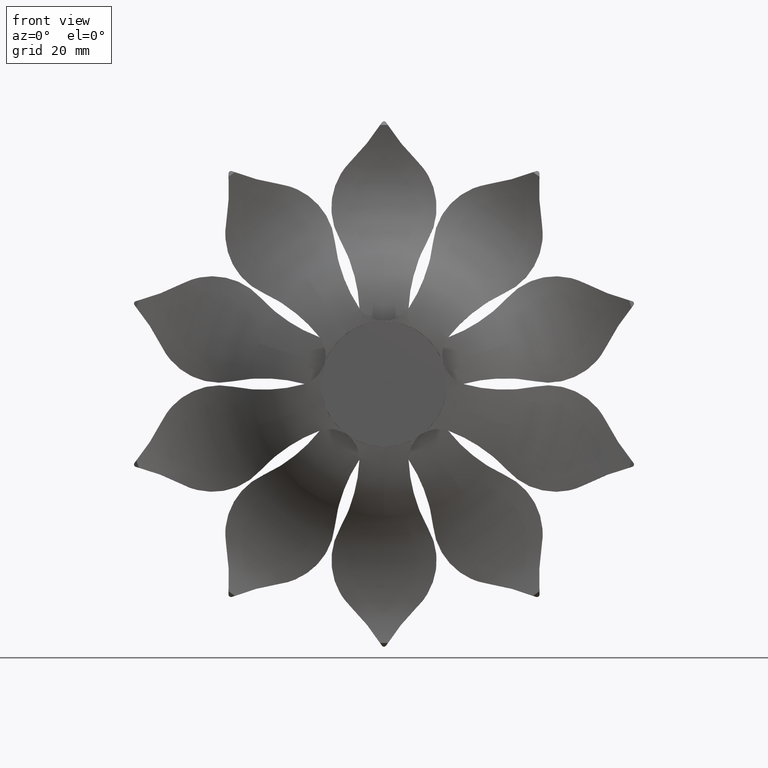
[diagram: clean part render]
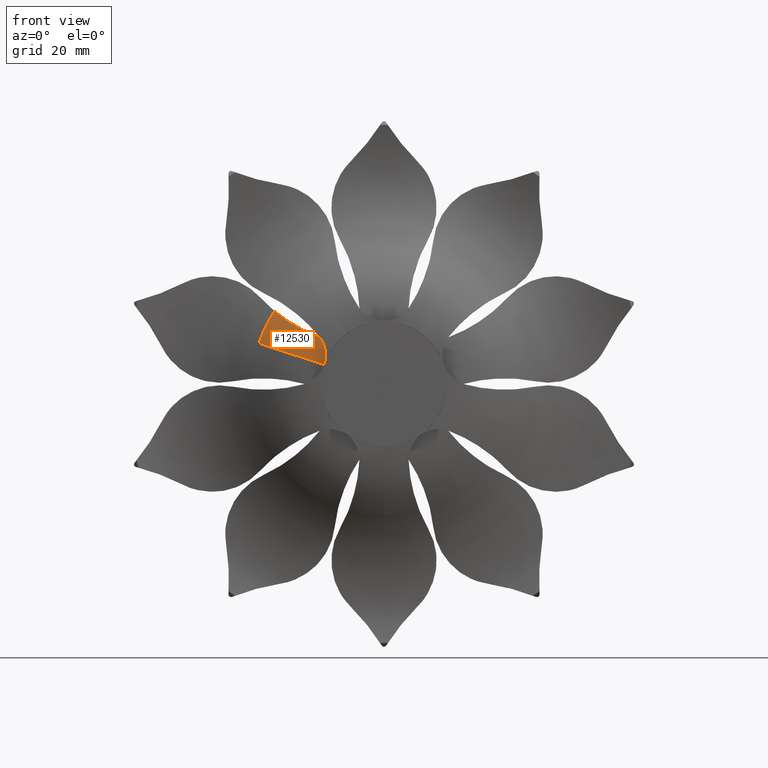
[diagram: same view with one face highlighted and labeled with its STEP entity id]
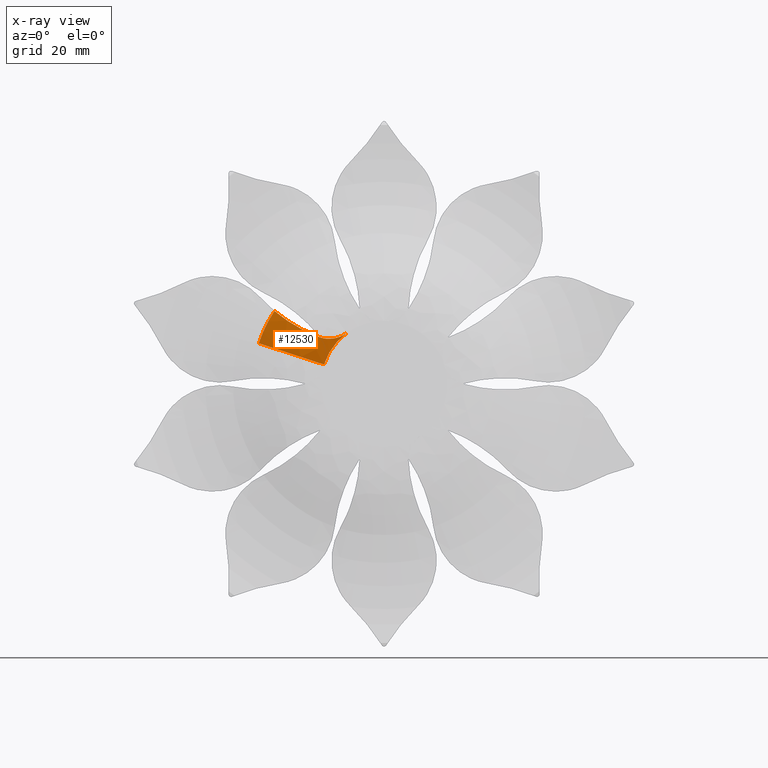
[diagram: x-ray of the same camera — body ghosted, the highlighted face saturated]
A machine part, front view. The second image highlights one B-rep face of the part: STEP entity #12530.
The next image is the same camera in x-ray: the body ghosted, the highlighted face saturated — about 0% of this face is hidden behind the body in this view.
In plain terms, the highlighted toroidal blend (fillet) surface has major radius 12.5 mm and minor (blend) radius 22.4 mm.
Its self-contained STEP definition (entity closure, byte-faithful):
#223 = EDGE_LOOP ( 'NONE', ( #15171, #5364, #14833, #1477, #6980, #15222 ) ) ;
#565 = CIRCLE ( 'NONE', #9128, 26.29112535509701942 ) ;
#1297 = CARTESIAN_POINT ( 'NONE',  ( -3.078303792281854356, 0.03409906769956676936, 13.39702496691542066 ) ) ;
#1371 = VERTEX_POINT ( 'NONE', #15833 ) ;
#1477 = ORIENTED_EDGE ( 'NONE', *, *, #16818, .T. ) ;
#1574 = CARTESIAN_POINT ( 'NONE',  ( -5.214421399244131727, 0.3396485422876213134, 15.56295345870082159 ) ) ;
#1753 = CARTESIAN_POINT ( 'NONE',  ( -7.406094178885017421, 0.0002232153978772022374, 10.19361412912425635 ) ) ;
#2291 = DIRECTION ( 'NONE',  ( 0.000000000000000000, 1.000000000000000000, 0.000000000000000000 ) ) ;
#2463 = EDGE_CURVE ( 'NONE', #7565, #1371, #565, .T. ) ;
#2772 = CARTESIAN_POINT ( 'NONE',  ( -3.279659490429240876, 0.04383301957794229903, 13.52107359742507064 ) ) ;
#2894 = CARTESIAN_POINT ( 'NONE',  ( -4.953395093973306906, 0.2690098972668964472, 15.17303149538846618 ) ) ;
#2981 = CARTESIAN_POINT ( 'NONE',  ( -6.179182834428479154, 0.7425971051778388343, 17.16116247054413790 ) ) ;
#3050 = CARTESIAN_POINT ( 'NONE',  ( -8.731682791361855323, 3.630896263037704408, 23.14323735807568383 ) ) ;
#3810 = CARTESIAN_POINT ( 'NONE',  ( -0.1336640428117970847, 0.0002242142059079518812, 12.59951450238997950 ) ) ;
#3877 = CARTESIAN_POINT ( 'NONE',  ( -0.1055835188653688195, 0.0002232153978772022374, 12.59956545320266130 ) ) ;
#4262 = CARTESIAN_POINT ( 'NONE',  ( -3.668208443973466792, 0.06957165823216795997, 13.79479204648873925 ) ) ;
#4407 = CARTESIAN_POINT ( 'NONE',  ( -5.465376825153379414, 0.4249040190016638019, 15.95761293183931961 ) ) ;
#4471 = CARTESIAN_POINT ( 'NONE',  ( -7.918628734660073221, 2.208461816172168302, 20.78766157815527293 ) ) ;
#5063 = B_SPLINE_CURVE_WITH_KNOTS ( 'NONE', 3,
 ( #16137, #8629, #19068, #10146, #5661, #19131, #10210, #1297, #2772, #4262, #7246, #14713, #5725, #17681 ),
 .UNSPECIFIED., .F., .F.,
 ( 4, 2, 2, 2, 2, 2, 4 ),
 ( 4.156345178196204872E-05, 0.001459924718490714004, 0.002169105351845089687, 0.002878285985199464936, 0.003587466618553840619, 0.004296647251908215434, 0.005715008518616966800 ),
 .UNSPECIFIED. ) ;
#5364 = ORIENTED_EDGE ( 'NONE', *, *, #10197, .F. ) ;
#5545 = AXIS2_PLACEMENT_3D ( 'NONE', #16544, #7589, #18028 ) ;
#5661 = CARTESIAN_POINT ( 'NONE',  ( -2.001888816141093930, 0.006573459377715545719, 12.90346706639638086 ) ) ;
#5676 = TOROIDAL_SURFACE ( 'NONE', #11478, 12.50000000000000000, 22.40000000000000213 ) ;
#5725 = CARTESIAN_POINT ( 'NONE',  ( -4.689541148732976339, 0.1976060394993346681, 14.77888559408143898 ) ) ;
#5921 = EDGE_CURVE ( 'NONE', #6700, #18262, #9825, .T. ) ;
#6700 = VERTEX_POINT ( 'NONE', #10833 ) ;
#6980 = ORIENTED_EDGE ( 'NONE', *, *, #10225, .T. ) ;
#7246 = CARTESIAN_POINT ( 'NONE',  ( -3.855862625445033220, 0.08569211853161362580, 13.94515461723436367 ) ) ;
#7565 = VERTEX_POINT ( 'NONE', #17786 ) ;
#7589 = DIRECTION ( 'NONE',  ( -0.000000000000000000, -1.000000000000000000, -0.000000000000000000 ) ) ;
#8629 = CARTESIAN_POINT ( 'NONE',  ( -0.6126496245480321790, 0.0002469486634975683373, 12.59951450238997950 ) ) ;
#8802 = CARTESIAN_POINT ( 'NONE',  ( -0.1336640428117970847, 0.0002242142059079518812, 12.59951450238997950 ) ) ;
#9128 = AXIS2_PLACEMENT_3D ( 'NONE', #13327, #14830, #10153 ) ;
#9825 = B_SPLINE_CURVE_WITH_KNOTS ( 'NONE', 3,
 ( #11318, #3877, #18553, #3810 ),
 .UNSPECIFIED., .F., .F.,
 ( 4, 4 ),
 ( 0.000000000000000000, 4.156345178196204872E-05 ),
 .UNSPECIFIED. ) ;
#10146 = CARTESIAN_POINT ( 'NONE',  ( -1.772530771904489155, 0.004375613441966161136, 12.83081668584182822 ) ) ;
#10153 = DIRECTION ( 'NONE',  ( 0.5877852522924685852, 0.000000000000000000, -0.8090169943749506709 ) ) ;
#10197 = EDGE_CURVE ( 'NONE', #6700, #13226, #18827, .T. ) ;
#10210 = CARTESIAN_POINT ( 'NONE',  ( -2.661728613830802281, 0.01917130877036155381, 13.17412510719175778 ) ) ;
#10225 = EDGE_CURVE ( 'NONE', #14918, #1371, #13621, .T. ) ;
#10552 = CARTESIAN_POINT ( 'NONE',  ( -8.952290879627975428, 4.171282587600551039, 23.90578551413962316 ) ) ;
#10833 = CARTESIAN_POINT ( 'NONE',  ( -0.09153081192546552725, 0.0002232153978772022374, 12.59966753968009456 ) ) ;
#11318 = CARTESIAN_POINT ( 'NONE',  ( -0.09153081192546552725, 0.0002232153978772022374, 12.59966753968009456 ) ) ;
#11354 = CARTESIAN_POINT ( 'NONE',  ( 0.000000000000000000, 22.39999999999999858, 0.000000000000000000 ) ) ;
#11478 = AXIS2_PLACEMENT_3D ( 'NONE', #11354, #2291, #12724 ) ;
#11914 = CARTESIAN_POINT ( 'NONE',  ( -5.947378778508673136, 0.6261470841062983794, 16.75600927734355494 ) ) ;
#11973 = CARTESIAN_POINT ( 'NONE',  ( -6.839606618484117107, 1.137275969072910842, 18.37975749294628613 ) ) ;
#12247 = FACE_OUTER_BOUND ( 'NONE', #223, .T. ) ;
#12530 = ADVANCED_FACE ( 'NONE', ( #12247 ), #5676, .T. ) ;
#12724 = DIRECTION ( 'NONE',  ( 0.5877852522924685852, 0.000000000000000000, -0.8090169943749507819 ) ) ;
#12726 = CIRCLE ( 'NONE', #16721, 22.40000000000000213 ) ;
#13226 = VERTEX_POINT ( 'NONE', #1753 ) ;
#13228 = DIRECTION ( 'NONE',  ( -0.8090169943749506709, 0.000000000000000000, -0.5877852522924686962 ) ) ;
#13327 = CARTESIAN_POINT ( 'NONE',  ( 0.000000000000000000, 4.748799999999993915, 0.000000000000000000 ) ) ;
#13408 = CARTESIAN_POINT ( 'NONE',  ( -7.228827319454652844, 1.457251908239847626, 19.18722822533937133 ) ) ;
#13473 = CARTESIAN_POINT ( 'NONE',  ( -4.953395093973306906, 0.2690098972668964472, 15.17303149538846618 ) ) ;
#13621 = B_SPLINE_CURVE_WITH_KNOTS ( 'NONE', 3,
 ( #13473, #1574, #4407, #11914, #2981, #11973, #13408, #4471, #14909, #16413, #3050, #10552, #15100, #15166 ),
 .UNSPECIFIED., .F., .F.,
 ( 4, 2, 2, 2, 2, 2, 4 ),
 ( 0.003732046936152122983, 0.005154994219110132364, 0.006577941502068140878, 0.009423836067984157905, 0.01226973063390017840, 0.01369267791685818692, 0.01511562519981619543 ),
 .UNSPECIFIED. ) ;
#14111 = EDGE_CURVE ( 'NONE', #13226, #7565, #12726, .T. ) ;
#14713 = CARTESIAN_POINT ( 'NONE',  ( -4.381999720096984241, 0.1444207121258548887, 14.42258338992803779 ) ) ;
#14830 = DIRECTION ( 'NONE',  ( 0.000000000000000000, 1.000000000000000000, 0.000000000000000000 ) ) ;
#14833 = ORIENTED_EDGE ( 'NONE', *, *, #5921, .T. ) ;
#14909 = CARTESIAN_POINT ( 'NONE',  ( -8.219150374778896762, 2.639668854509095830, 21.58066247497079004 ) ) ;
#14918 = VERTEX_POINT ( 'NONE', #2894 ) ;
#15100 = CARTESIAN_POINT ( 'NONE',  ( -9.052641162020123033, 4.453828925648322112, 24.28097644969893665 ) ) ;
#15166 = CARTESIAN_POINT ( 'NONE',  ( -9.143976316918257297, 4.748799999999996579, 24.64976611558542530 ) ) ;
#15171 = ORIENTED_EDGE ( 'NONE', *, *, #14111, .F. ) ;
#15222 = ORIENTED_EDGE ( 'NONE', *, *, #2463, .F. ) ;
#15833 = CARTESIAN_POINT ( 'NONE',  ( -9.143976316918257297, 4.748799999999996579, 24.64976611558542530 ) ) ;
#16137 = CARTESIAN_POINT ( 'NONE',  ( -0.1336640428117970847, 0.0002242142059079518812, 12.59951450238997950 ) ) ;
#16413 = CARTESIAN_POINT ( 'NONE',  ( -8.611061137444647073, 3.372413479012154269, 22.75481688025008964 ) ) ;
#16493 = CARTESIAN_POINT ( 'NONE',  ( -7.347315653655858370, 22.39999999999999858, 10.11271242968688355 ) ) ;
#16544 = CARTESIAN_POINT ( 'NONE',  ( 0.000000000000000000, 0.0002232153978772022374, 0.000000000000000000 ) ) ;
#16721 = AXIS2_PLACEMENT_3D ( 'NONE', #16493, #13228, #17973 ) ;
#16818 = EDGE_CURVE ( 'NONE', #18262, #14918, #5063, .T. ) ;
#17681 = CARTESIAN_POINT ( 'NONE',  ( -4.953395093973306906, 0.2690098972668964472, 15.17303149538846618 ) ) ;
#17786 = CARTESIAN_POINT ( 'NONE',  ( -15.45353574989862189, 4.748799999999995691, 21.26996721351564901 ) ) ;
#17973 = DIRECTION ( 'NONE',  ( -0.5877852522924686962, 0.000000000000000000, 0.8090169943749505599 ) ) ;
#18028 = DIRECTION ( 'NONE',  ( 0.000000000000000000, 0.000000000000000000, 1.000000000000000000 ) ) ;
#18262 = VERTEX_POINT ( 'NONE', #8802 ) ;
#18553 = CARTESIAN_POINT ( 'NONE',  ( -0.1196279191541441550, 0.0002235479986747362707, 12.59951450238997950 ) ) ;
#18827 = CIRCLE ( 'NONE', #5545, 12.59999999999999787 ) ;
#19068 = CARTESIAN_POINT ( 'NONE',  ( -1.082143484070354544, 0.0002188522393589091694, 12.65795505738461912 ) ) ;
#19131 = CARTESIAN_POINT ( 'NONE',  ( -2.446509541636181062, 0.01397839339293395315, 13.07527306149524371 ) ) ;